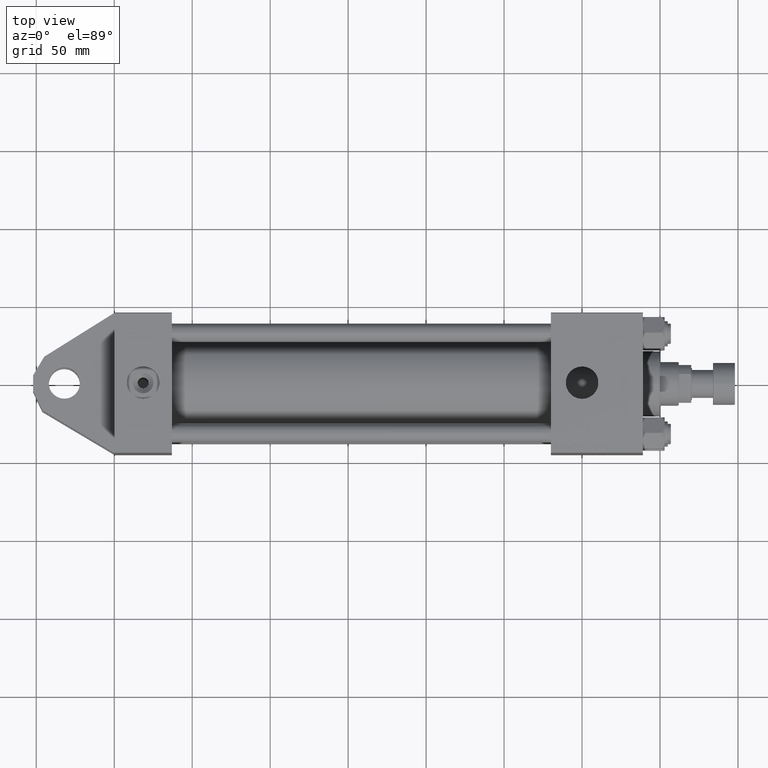
[diagram: clean part render]
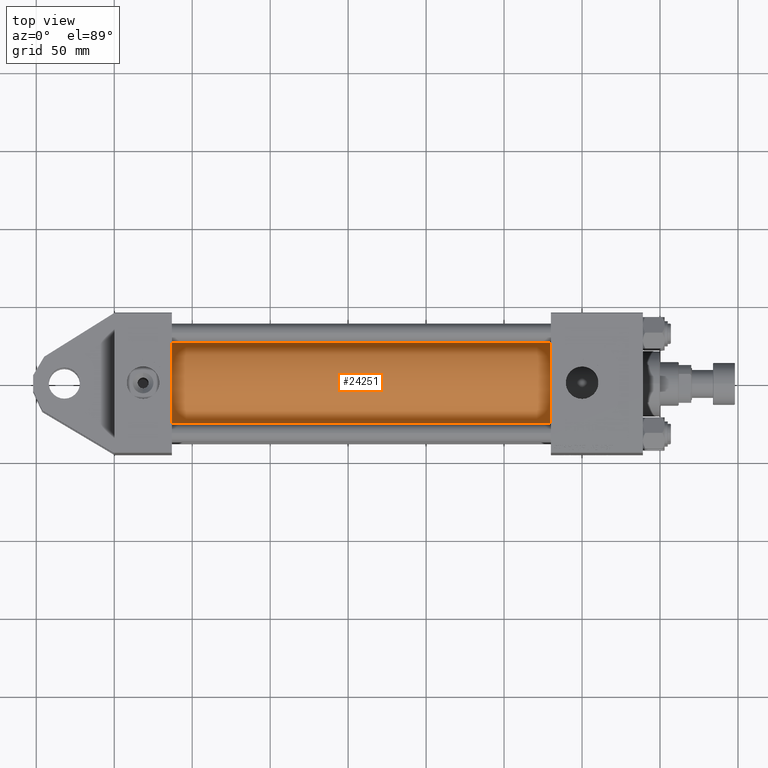
[diagram: same view with one face highlighted and labeled with its STEP entity id]
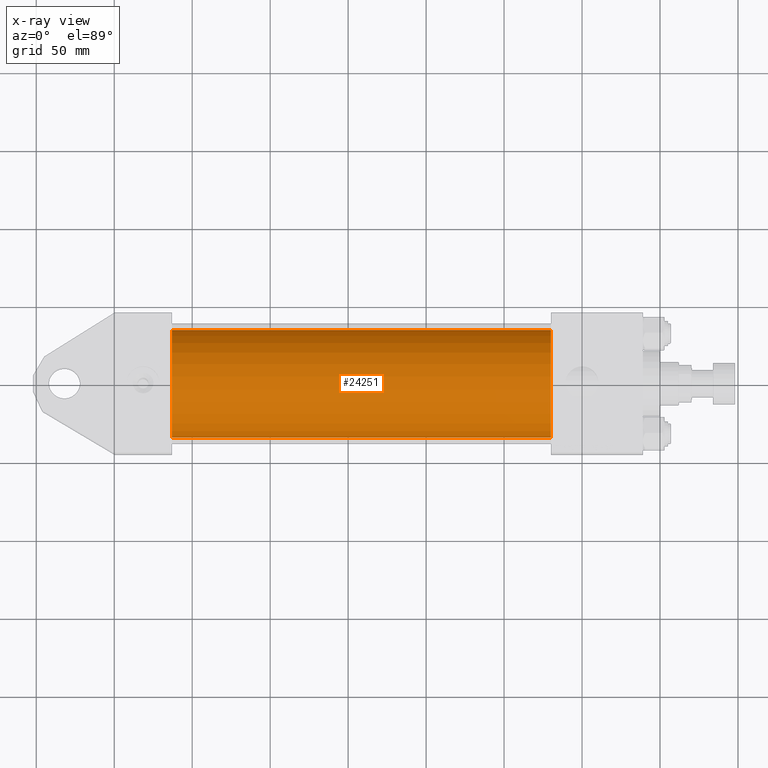
[diagram: x-ray of the same camera — body ghosted, the highlighted face saturated]
A machine part, top view. The second image highlights one B-rep face of the part: STEP entity #24251.
The next image is the same camera in x-ray: the body ghosted, the highlighted face saturated — about 0% of this face is hidden behind the body in this view.
In plain terms, the highlighted cylindrical surface (partial cylindrical patch) has radius 34.5 mm, axis along (-1, -0, 0).
Its self-contained STEP definition (entity closure, byte-faithful):
#1158 = LINE ( 'NONE', #17301, #13065 ) ;
#2673 = AXIS2_PLACEMENT_3D ( 'NONE', #20023, #15547, #44353 ) ;
#4445 = DIRECTION ( 'NONE',  ( 0.000000000000000000, 0.000000000000000000, -1.000000000000000000 ) ) ;
#6313 = FACE_OUTER_BOUND ( 'NONE', #37395, .T. ) ;
#6404 = CARTESIAN_POINT ( 'NONE',  ( 279.9999999999999432, 7.555845051047534515E-16, -34.49999999999999289 ) ) ;
#7807 = VECTOR ( 'NONE', #10087, 1000.000000000000000 ) ;
#8577 = CIRCLE ( 'NONE', #2673, 34.49999999999999289 ) ;
#10087 = DIRECTION ( 'NONE',  ( -1.000000000000000000, -0.000000000000000000, -0.000000000000000000 ) ) ;
#13065 = VECTOR ( 'NONE', #33434, 1000.000000000000000 ) ;
#15547 = DIRECTION ( 'NONE',  ( 1.000000000000000000, -0.000000000000000000, 0.000000000000000000 ) ) ;
#17301 = CARTESIAN_POINT ( 'NONE',  ( 279.9999999999999432, -3.469446951953614189E-15, 34.49999999999999289 ) ) ;
#18278 = CARTESIAN_POINT ( 'NONE',  ( 279.9999999999999432, 7.555845051047534515E-16, -34.49999999999999289 ) ) ;
#18791 = LINE ( 'NONE', #18278, #7807 ) ;
#20023 = CARTESIAN_POINT ( 'NONE',  ( 37.00000000000000711, -3.469446951953614189E-15, 0.000000000000000000 ) ) ;
#24251 = ADVANCED_FACE ( 'NONE', ( #6313 ), #37537, .T. ) ;
#24329 = AXIS2_PLACEMENT_3D ( 'NONE', #37800, #42013, #38049 ) ;
#25703 = ORIENTED_EDGE ( 'NONE', *, *, #49214, .T. ) ;
#27170 = ORIENTED_EDGE ( 'NONE', *, *, #52060, .F. ) ;
#27677 = EDGE_CURVE ( 'NONE', #35205, #30060, #51403, .T. ) ;
#27992 = ORIENTED_EDGE ( 'NONE', *, *, #27677, .F. ) ;
#30060 = VERTEX_POINT ( 'NONE', #6404 ) ;
#30675 = ORIENTED_EDGE ( 'NONE', *, *, #44147, .T. ) ;
#33434 = DIRECTION ( 'NONE',  ( -1.000000000000000000, -0.000000000000000000, -0.000000000000000000 ) ) ;
#35205 = VERTEX_POINT ( 'NONE', #52062 ) ;
#37395 = EDGE_LOOP ( 'NONE', ( #27170, #27992, #30675, #25703 ) ) ;
#37496 = DIRECTION ( 'NONE',  ( 1.000000000000000000, 0.000000000000000000, 0.000000000000000000 ) ) ;
#37537 = CYLINDRICAL_SURFACE ( 'NONE', #24329, 34.49999999999999289 ) ;
#37800 = CARTESIAN_POINT ( 'NONE',  ( 279.9999999999999432, -3.469446951953614189E-15, 0.000000000000000000 ) ) ;
#38049 = DIRECTION ( 'NONE',  ( 0.000000000000000000, 0.000000000000000000, 1.000000000000000000 ) ) ;
#41825 = VERTEX_POINT ( 'NONE', #45407 ) ;
#42013 = DIRECTION ( 'NONE',  ( -1.000000000000000000, -0.000000000000000000, -0.000000000000000000 ) ) ;
#42460 = CARTESIAN_POINT ( 'NONE',  ( 37.00000000000000711, -3.469446951953614189E-15, 34.49999999999999289 ) ) ;
#44147 = EDGE_CURVE ( 'NONE', #35205, #45944, #1158, .T. ) ;
#44353 = DIRECTION ( 'NONE',  ( 0.000000000000000000, 0.000000000000000000, 1.000000000000000000 ) ) ;
#45407 = CARTESIAN_POINT ( 'NONE',  ( 37.00000000000000711, 7.555845051047534515E-16, -34.49999999999999289 ) ) ;
#45944 = VERTEX_POINT ( 'NONE', #42460 ) ;
#49112 = CARTESIAN_POINT ( 'NONE',  ( 279.9999999999999432, -3.469446951953614189E-15, 0.000000000000000000 ) ) ;
#49214 = EDGE_CURVE ( 'NONE', #45944, #41825, #8577, .T. ) ;
#51403 = CIRCLE ( 'NONE', #52239, 34.49999999999999289 ) ;
#52060 = EDGE_CURVE ( 'NONE', #30060, #41825, #18791, .T. ) ;
#52062 = CARTESIAN_POINT ( 'NONE',  ( 279.9999999999999432, -3.469446951953614189E-15, 34.49999999999999289 ) ) ;
#52239 = AXIS2_PLACEMENT_3D ( 'NONE', #49112, #37496, #4445 ) ;